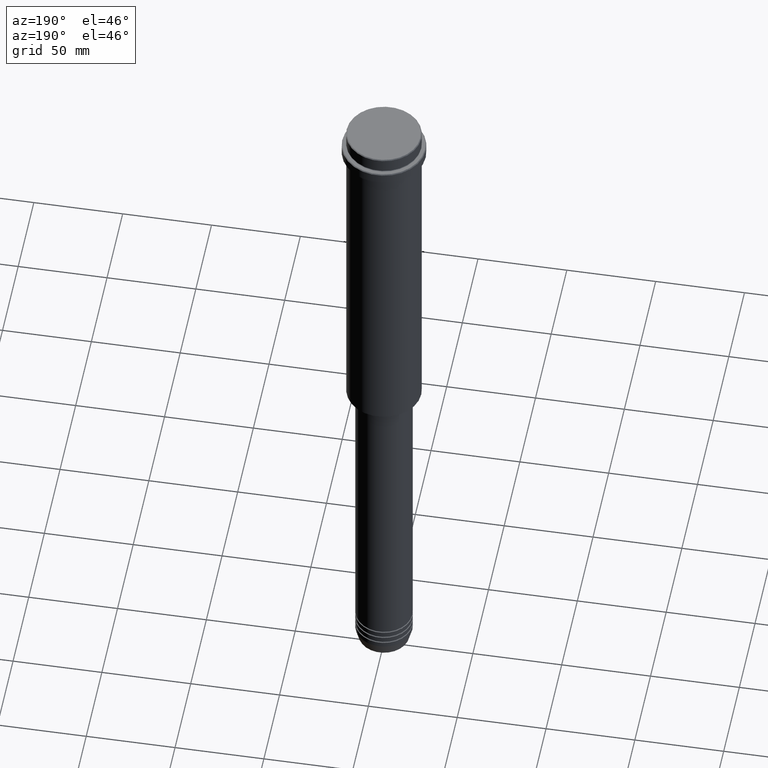
[diagram: clean part render]
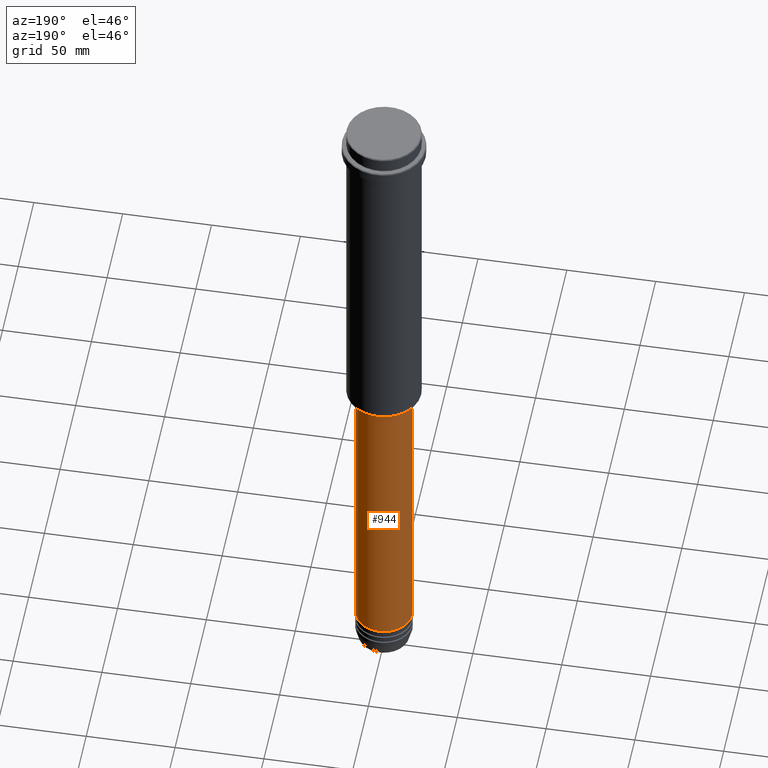
[diagram: same view with one face highlighted and labeled with its STEP entity id]
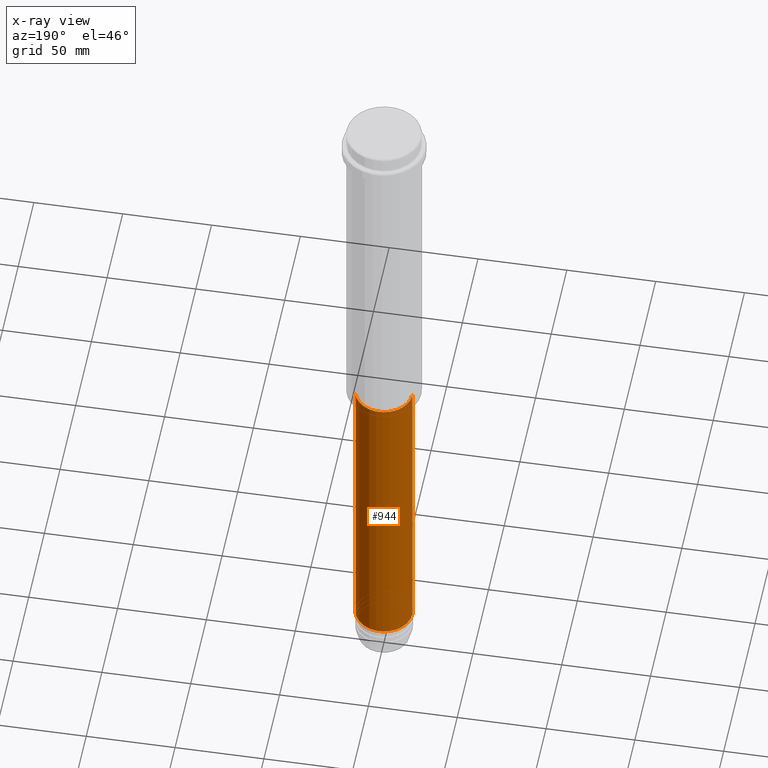
[diagram: x-ray of the same camera — body ghosted, the highlighted face saturated]
A machine part, auxiliary view. The second image highlights one B-rep face of the part: STEP entity #944.
The next image is the same camera in x-ray: the body ghosted, the highlighted face saturated — about 0% of this face is hidden behind the body in this view.
In plain terms, the highlighted cylindrical surface (edge-blend (fillet) strip) has radius 16 mm, axis along (-0, -0, 1).
Its self-contained STEP definition (entity closure, byte-faithful):
#1 = AXIS2_PLACEMENT_3D ( 'NONE', #1145, #818, #797 ) ;
#135 = ORIENTED_EDGE ( 'NONE', *, *, #532, .F. ) ;
#284 = LINE ( 'NONE', #291, #1217 ) ;
#291 = CARTESIAN_POINT ( 'NONE',  ( -16.00000000000000000, 1.959434878635765131E-15, 0.000000000000000000 ) ) ;
#302 = CARTESIAN_POINT ( 'NONE',  ( -16.00000000000000000, 1.959434878635765131E-15, -380.9999999999998863 ) ) ;
#318 = CARTESIAN_POINT ( 'NONE',  ( 16.00000000000000000, 0.000000000000000000, -380.9999999999998863 ) ) ;
#368 = DIRECTION ( 'NONE',  ( -0.000000000000000000, -0.000000000000000000, 1.000000000000000000 ) ) ;
#416 = CYLINDRICAL_SURFACE ( 'NONE', #970, 16.00000000000000000 ) ;
#488 = VERTEX_POINT ( 'NONE', #302 ) ;
#532 = EDGE_CURVE ( 'NONE', #1348, #673, #601, .T. ) ;
#541 = CARTESIAN_POINT ( 'NONE',  ( -16.00000000000000355, 1.959434878635765526E-15, -205.9999999999999432 ) ) ;
#559 = EDGE_CURVE ( 'NONE', #1406, #1348, #1333, .T. ) ;
#591 = CARTESIAN_POINT ( 'NONE',  ( 0.000000000000000000, 0.000000000000000000, -380.9999999999998863 ) ) ;
#601 = CIRCLE ( 'NONE', #1, 16.00000000000000355 ) ;
#673 = VERTEX_POINT ( 'NONE', #541 ) ;
#735 = CIRCLE ( 'NONE', #1101, 16.00000000000000000 ) ;
#742 = CARTESIAN_POINT ( 'NONE',  ( 16.00000000000000355, 0.000000000000000000, -205.9999999999999432 ) ) ;
#788 = ORIENTED_EDGE ( 'NONE', *, *, #1208, .T. ) ;
#797 = DIRECTION ( 'NONE',  ( 1.000000000000000000, 0.000000000000000000, 0.000000000000000000 ) ) ;
#807 = ORIENTED_EDGE ( 'NONE', *, *, #1255, .T. ) ;
#818 = DIRECTION ( 'NONE',  ( -0.000000000000000000, -0.000000000000000000, 1.000000000000000000 ) ) ;
#848 = DIRECTION ( 'NONE',  ( -0.000000000000000000, -0.000000000000000000, 1.000000000000000000 ) ) ;
#871 = FACE_OUTER_BOUND ( 'NONE', #1130, .T. ) ;
#944 = ADVANCED_FACE ( 'NONE', ( #871 ), #416, .T. ) ;
#962 = DIRECTION ( 'NONE',  ( 1.000000000000000000, 0.000000000000000000, 0.000000000000000000 ) ) ;
#970 = AXIS2_PLACEMENT_3D ( 'NONE', #1183, #1277, #962 ) ;
#1028 = DIRECTION ( 'NONE',  ( 1.000000000000000000, 0.000000000000000000, 0.000000000000000000 ) ) ;
#1033 = DIRECTION ( 'NONE',  ( -0.000000000000000000, -0.000000000000000000, 1.000000000000000000 ) ) ;
#1047 = CARTESIAN_POINT ( 'NONE',  ( 16.00000000000000000, 0.000000000000000000, 0.000000000000000000 ) ) ;
#1101 = AXIS2_PLACEMENT_3D ( 'NONE', #591, #1033, #1028 ) ;
#1130 = EDGE_LOOP ( 'NONE', ( #807, #788, #135, #1142 ) ) ;
#1142 = ORIENTED_EDGE ( 'NONE', *, *, #559, .F. ) ;
#1145 = CARTESIAN_POINT ( 'NONE',  ( 0.000000000000000000, 0.000000000000000000, -205.9999999999999432 ) ) ;
#1183 = CARTESIAN_POINT ( 'NONE',  ( 0.000000000000000000, 0.000000000000000000, 0.000000000000000000 ) ) ;
#1208 = EDGE_CURVE ( 'NONE', #488, #673, #284, .T. ) ;
#1217 = VECTOR ( 'NONE', #368, 1000.000000000000000 ) ;
#1255 = EDGE_CURVE ( 'NONE', #1406, #488, #735, .T. ) ;
#1277 = DIRECTION ( 'NONE',  ( -0.000000000000000000, -0.000000000000000000, 1.000000000000000000 ) ) ;
#1324 = VECTOR ( 'NONE', #848, 1000.000000000000000 ) ;
#1333 = LINE ( 'NONE', #1047, #1324 ) ;
#1348 = VERTEX_POINT ( 'NONE', #742 ) ;
#1406 = VERTEX_POINT ( 'NONE', #318 ) ;